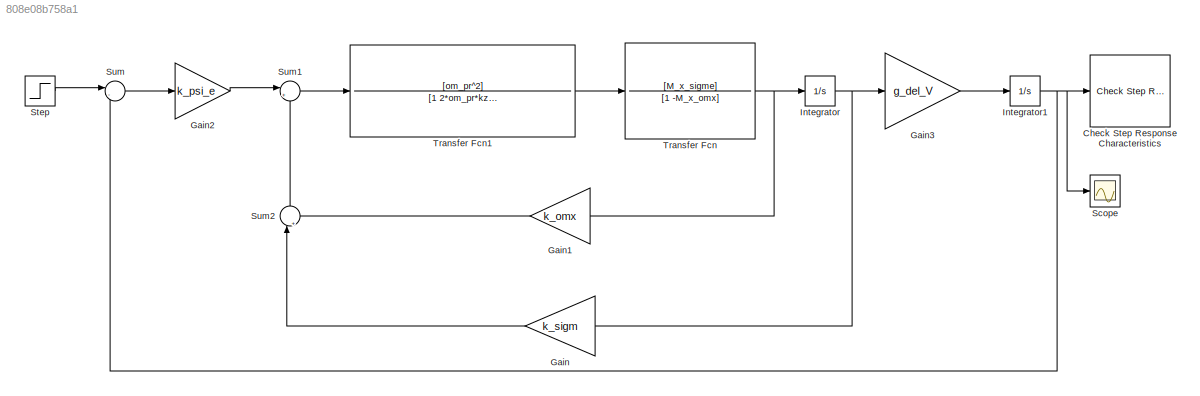
MODEL slx_808e08b758a1
KIND model
CONFIG AbsTol = auto
CONFIG EnableMultiTasking = off
CONFIG FixedStep = auto
CONFIG MaxStep = auto
CONFIG MinStep = auto
CONFIG RelTol = 1e-3
CONFIG SampleTimeConstraint = Unconstrained
CONFIG SolverName = VariableStepAuto
CONFIG StartTime = 0.0
CONFIG StopTime = 3
BLOCK [Reference] Check Step Response Characteristics  REF=checkpacklib/Check Step Response 
Characteristics
  InstantiateOnLoad = on
  LibrarySourceBlock = sdolib/Model Verification/Check Step Response \nCharacteristics
  SourceBlock = checkpacklib/Check Step Response \nCharacteristics
  SourceType = Checks_StepResponse
BLOCK [Gain] Gain
  Gain = k_sigm
BLOCK [Gain] Gain1
  Gain = k_omx
BLOCK [Gain] Gain2
  Gain = k_psi_e
BLOCK [Gain] Gain3
  Gain = g_del_V
BLOCK [Integrator] Integrator
BLOCK [Integrator] Integrator1
BLOCK [Scope] Scope
  Floating = off
  NumInputPorts = 1
  ScopeSpecificationString = Simulink.scopes.TimeScopeBlockCfg('CurrentConfiguration', extmgr.ConfigurationSet(extmgr.Configuration('Core','General UI',true),extmgr.Configuration('Core','Source UI',true),extmgr.Configuration('Sources','WiredSimulink',true),extmgr.Configuration('Visuals','Time Domain',true,'SerializedDisplays',{struct('MinYLimReal','-0.13031','MaxYLimReal','1.17278','YLabelReal','','MinYLimMag','0.00000','MaxY...<+1331ch>
BLOCK [Step] Step
  SampleTime = 0
  Time = 0
BLOCK [Sum] Sum
  Inputs = |-+
BLOCK [Sum] Sum1
  Inputs = |++
BLOCK [Sum] Sum2
  Inputs = |++
  NameLocation = right
BLOCK [TransferFcn] Transfer Fcn
  Denominator = [1 -M_x_omx]
  Numerator = [M_x_sigme]
BLOCK [TransferFcn] Transfer Fcn1
  Denominator = [1 2*om_pr*kzi_pr om_pr^2]
  Numerator = [om_pr^2]
LINE Gain1:1 -> Sum2:2
LINE Gain2:1 -> Sum1:1
LINE Gain3:1 -> Integrator1:1
LINE Gain:1 -> Sum2:1
NET Integrator1:1 -> Check Step Response Characteristics:1, Scope:1, Sum:2
NET Integrator:1 -> Gain3:1, Gain:1
LINE Step:1 -> Sum:1
LINE Sum1:1 -> Transfer Fcn1:1
LINE Sum2:1 -> Sum1:2
LINE Sum:1 -> Gain2:1
LINE Transfer Fcn1:1 -> Transfer Fcn:1
NET Transfer Fcn:1 -> Gain1:1, Integrator:1
note: NET lines group one-source signal fan-out (src -> all destinations, sorted); 1:1 wires keep LINE
